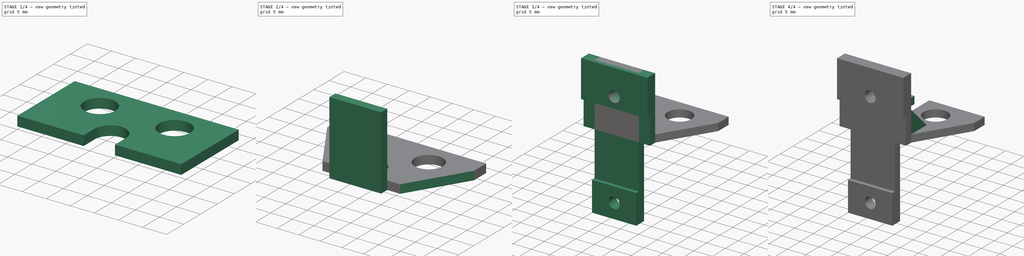
[diagram: build sequence overview — one tinted view per stage of 4, left to right]
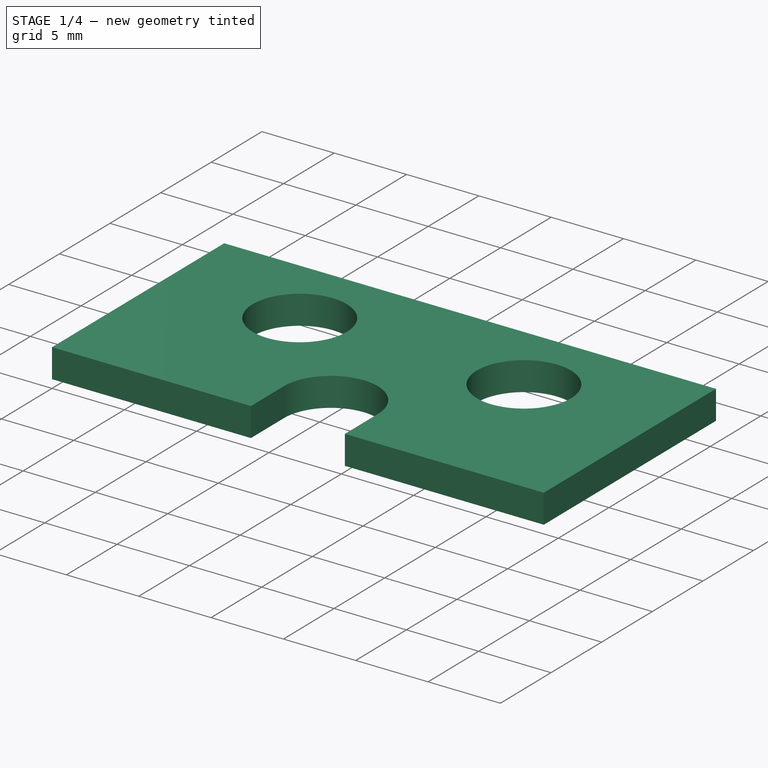
[diagram: stage 1 of 4 — iso view after this stage's code; geometry added in this stage tinted green]
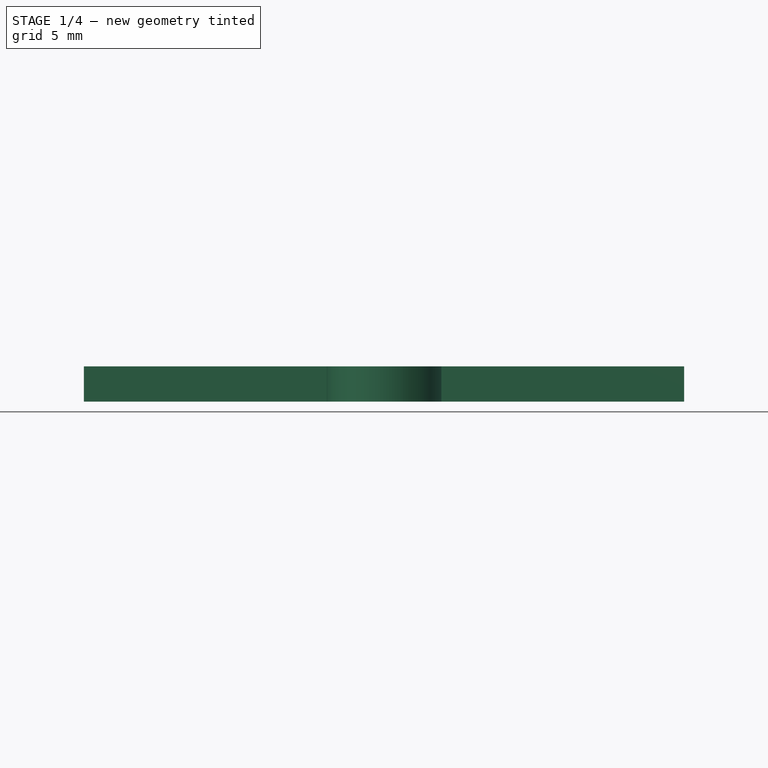
[diagram: stage 1 of 4 — front view after this stage's code; geometry added in this stage tinted green]
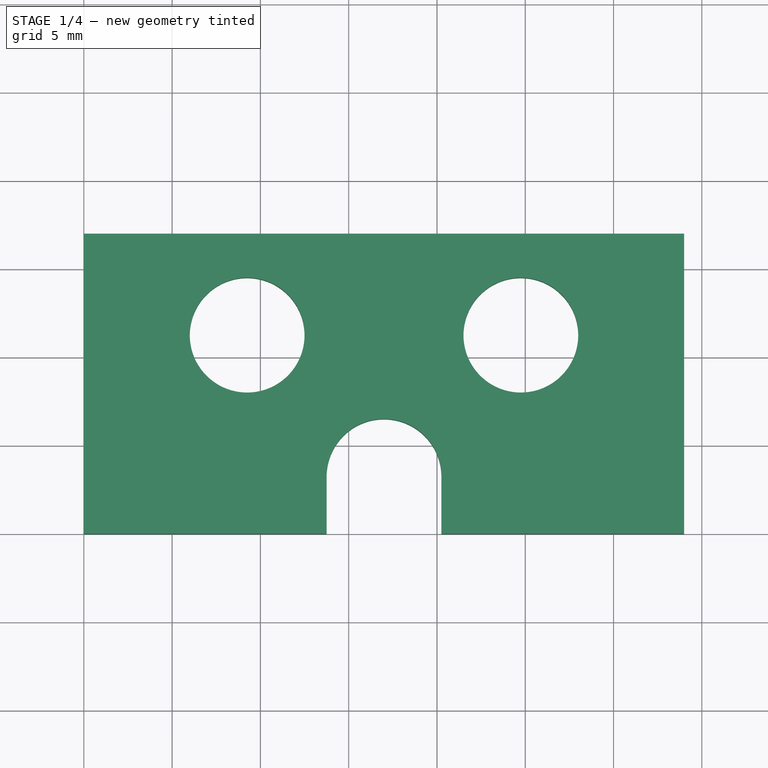
[diagram: stage 1 of 4 — top view after this stage's code; geometry added in this stage tinted green]
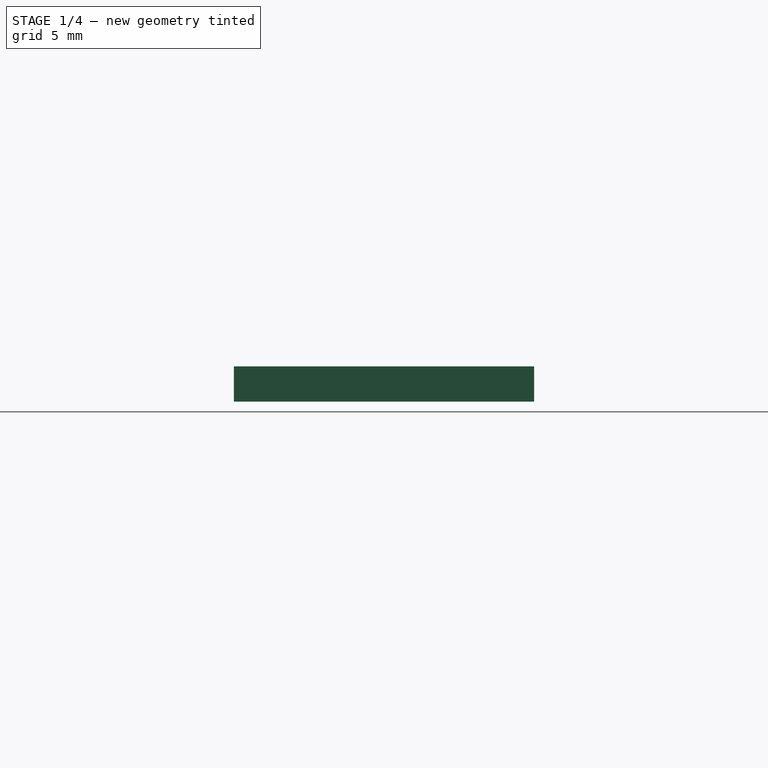
[diagram: stage 1 of 4 — right view after this stage's code; geometry added in this stage tinted green]
FCSTD DOCUMENT  (FreeCAD 0.16R)
Label: support_led_top_vertical_v2
License: All rights reserved
LicenseURL: http://en.wikipedia.org/wiki/All_rights_reserved
objects: Sketcher::SketchObject×12, PartDesign::Pad×7, PartDesign::Pocket×5, Part::Box×1
note: 37 computed .brp shape members not serialized (recipe doc carries the construction recipe); baked Part::Feature solids carry a one-line shape summary decoded from their .brp

FEATURE [Part::Box] Box  label="Cube"
  Height = 2
  Length = 34
  Width = 17
FEATURE [Sketcher::SketchObject] Sketch
  ExternalGeometry = -> [Box]
  Placement = pos=(0,0,2) rot=(0,0,1;0rad)
  Support = -> Box [Face6]
  sketch-geometry (5):
    g0: Circle CenterX=9.25 CenterY=11.25 CenterZ=0 NormalX=0 NormalY=0 NormalZ=1 Radius=3.25
    g1: Circle CenterX=24.75 CenterY=11.25 CenterZ=0 NormalX=0 NormalY=0 NormalZ=1 Radius=3.25
    g2: Circle CenterX=17 CenterY=3.25 CenterZ=0 NormalX=0 NormalY=0 NormalZ=1 Radius=3.25
    g3: LineSegment StartX=13.75 StartY=3.25 StartZ=0 EndX=13.75 EndY=0 EndZ=0
    g4: LineSegment StartX=20.25 StartY=3.24998 StartZ=0 EndX=20.25 EndY=0 EndZ=0
  constraints (17):
    c: Radius(g0) = 3.25
    c: Distance(g0,g-3) = 9.25
    c: Distance(g0,g-5) = 11.25
    c: Radius(g1) = 3.25
    c: Distance(g1,g-6) = 9.25
    c: Distance(g1,g-5) = 11.25
    c: Radius(g2) = 3.25
    c: Distance(g2,g-5) = 3.25
    c: Distance(g2,g-3) = 17
    c: PointOnObject(g3,g2)
    c: PointOnObject(g3,g-5)
    c: Vertical(g3)
    c: Tangent(g3,g2)
    c: PointOnObject(g4,g2)
    c: PointOnObject(g4,g-5)
    c: Vertical(g4)
    c: Tangent(g4,g2)
FEATURE [PartDesign::Pocket] Pocket
  Length = 2
  Sketch = -> Sketch
  Type = 0
FEATURE [Sketcher::SketchObject] Sketch001
  ExternalGeometry = -> [Pocket]
  Placement = pos=(0,0,2) rot=(0,0,1;0rad)
  Support = -> Pocket [Face3]
  sketch-geometry (4):
    g0: LineSegment StartX=13.7506 StartY=3.18723 StartZ=0 EndX=20.2494 EndY=3.18723 EndZ=0
    g1: LineSegment StartX=20.2494 StartY=3.18723 StartZ=0 EndX=20.2494 EndY=0 EndZ=0
    g2: LineSegment StartX=20.2494 StartY=0 StartZ=0 EndX=13.7506 EndY=0 EndZ=0
    g3: LineSegment StartX=13.7506 StartY=0 StartZ=0 EndX=13.7506 EndY=3.18723 EndZ=0
  constraints (11):
    c: Coincident(g0,g1)
    c: Coincident(g1,g2)
    c: Coincident(g2,g3)
    c: Coincident(g3,g0)
    c: Horizontal(g0)
    c: Horizontal(g2)
    c: Vertical(g1)
    c: Vertical(g3)
    c: PointOnObject(g0,g-3)
    c: PointOnObject(g1,g-1)
    c: PointOnObject(g0,g-3)
FEATURE [PartDesign::Pocket] Pocket001
  Length = 2
  Sketch = -> Sketch001
  Type = 0
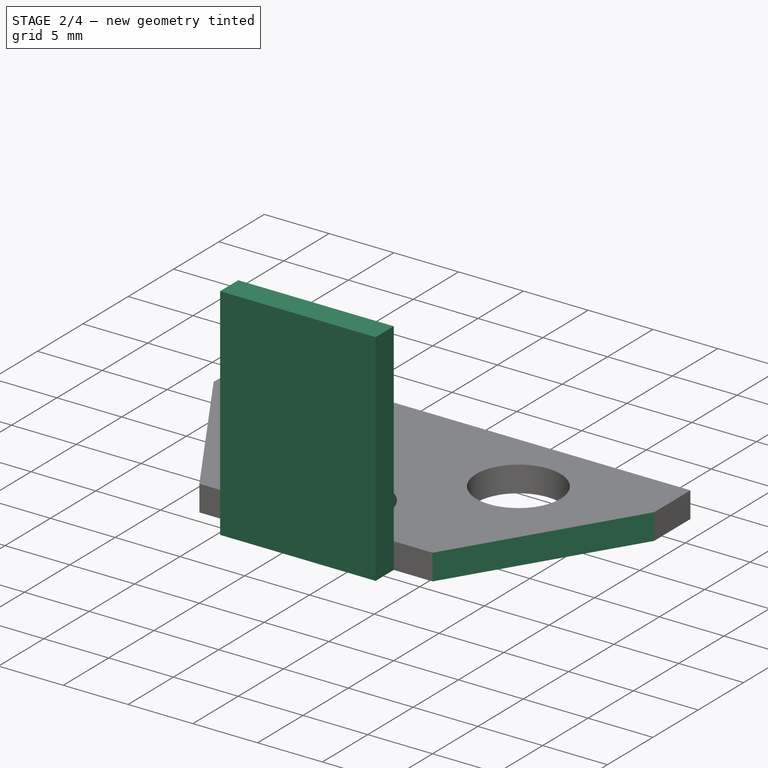
[diagram: stage 2 of 4 — iso view after this stage's code; geometry added in this stage tinted green]
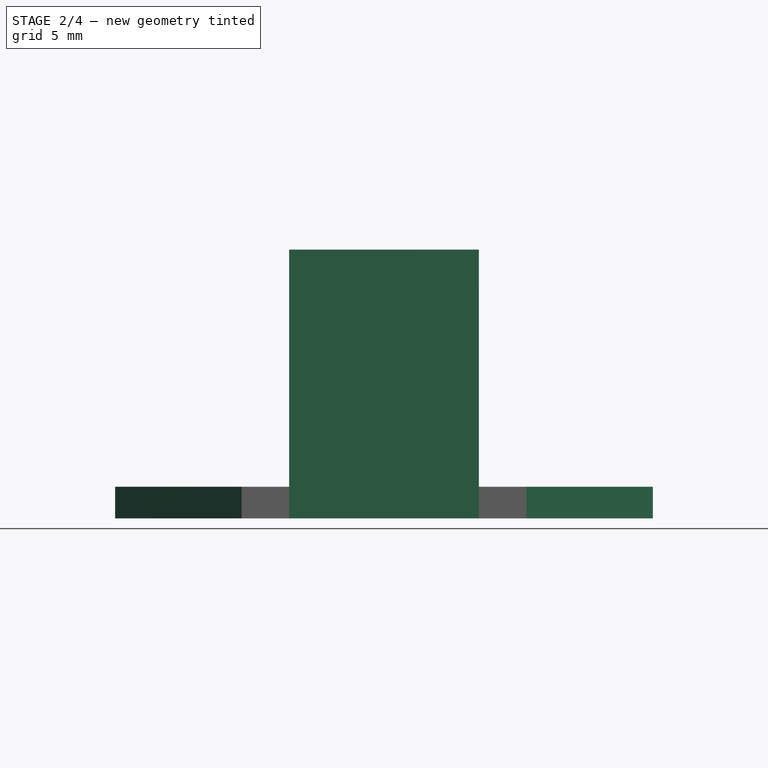
[diagram: stage 2 of 4 — front view after this stage's code; geometry added in this stage tinted green]
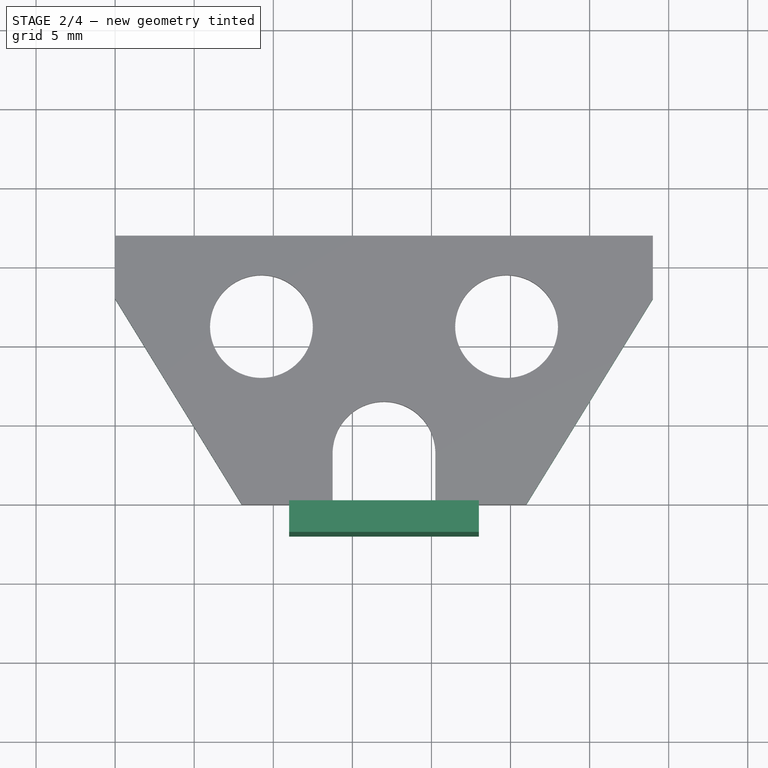
[diagram: stage 2 of 4 — top view after this stage's code; geometry added in this stage tinted green]
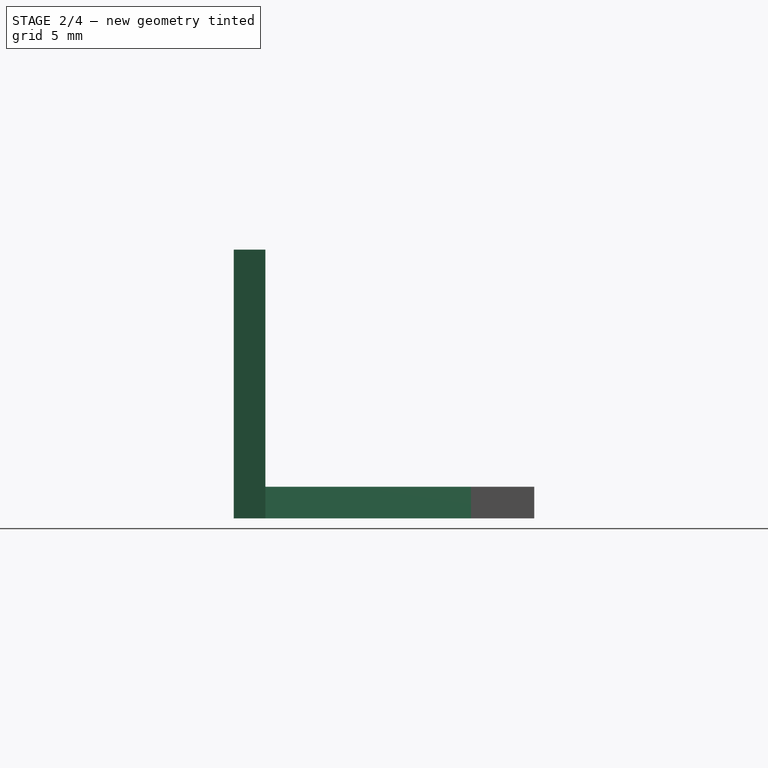
[diagram: stage 2 of 4 — right view after this stage's code; geometry added in this stage tinted green]
FEATURE [Sketcher::SketchObject] Sketch002
  ExternalGeometry = -> [Pocket001]
  Placement = pos=(0,0,2) rot=(0,0,1;0rad)
  Support = -> Pocket001 [Face3]
  sketch-geometry (6):
    g0: LineSegment StartX=0 StartY=0 StartZ=0 EndX=8 EndY=0 EndZ=0
    g1: LineSegment StartX=0 StartY=0 StartZ=0 EndX=0 EndY=13 EndZ=0
    g2: LineSegment StartX=0 StartY=13 StartZ=0 EndX=8 EndY=0 EndZ=0
    g3: LineSegment StartX=34 StartY=0 StartZ=0 EndX=26 EndY=0 EndZ=0
    g4: LineSegment StartX=34 StartY=0 StartZ=0 EndX=34 EndY=13 EndZ=0
    g5: LineSegment StartX=26 StartY=0 StartZ=0 EndX=34 EndY=13 EndZ=0
  constraints (16):
    c: Coincident(g0,g-1)
    c: Horizontal(g0)
    c: Coincident(g1,g-1)
    c: Vertical(g1)
    c: Distance(g0) = 8
    c: Distance(g1) = 13
    c: Coincident(g2,g0)
    c: Coincident(g3,g-3)
    c: Horizontal(g3)
    c: Coincident(g4,g3)
    c: Vertical(g4)
    c: Distance(g4) = 13
    c: Distance(g3) = 8
    c: Coincident(g5,g3)
    c: Coincident(g5,g4)
    c: Coincident(g2,g1)
FEATURE [PartDesign::Pocket] Pocket002
  Length = 2
  Sketch = -> Sketch002
  Type = 0
FEATURE [Sketcher::SketchObject] Sketch003
  ExternalGeometry = -> [Pocket002]
  Placement = pos=(0,0,0) rot=(1,0,0;1.5708rad)
  Support = -> Pocket002 [Face12]
  sketch-geometry (4):
    g0: LineSegment StartX=11 StartY=0 StartZ=0 EndX=23 EndY=0 EndZ=0
    g1: LineSegment StartX=23 StartY=0 StartZ=0 EndX=23 EndY=2 EndZ=0
    g2: LineSegment StartX=23 StartY=2 StartZ=0 EndX=11 EndY=2 EndZ=0
    g3: LineSegment StartX=11 StartY=2 StartZ=0 EndX=11 EndY=0 EndZ=0
  constraints (12):
    c: Coincident(g0,g1)
    c: Coincident(g1,g2)
    c: Coincident(g2,g3)
    c: Coincident(g3,g0)
    c: Horizontal(g0)
    c: Horizontal(g2)
    c: Vertical(g1)
    c: Vertical(g3)
    c: PointOnObject(g0,g-1)
    c: Distance(g-3,g3) = 3
    c: Distance(g3) = 2
    c: Distance(g0) = 12
FEATURE [PartDesign::Pad] Pad
  Length = 2
  Length2 = 100
  Sketch = -> Sketch003
  Type = 0
FEATURE [Sketcher::SketchObject] Sketch004
  ExternalGeometry = -> [Pad]
  Placement = pos=(0,0,2) rot=(0,0,1;0rad)
  Support = -> Pad [Face9]
  sketch-geometry (4):
    g0: LineSegment StartX=11 StartY=0 StartZ=0 EndX=23 EndY=0 EndZ=0
    g1: LineSegment StartX=23 StartY=0 StartZ=0 EndX=23 EndY=-2 EndZ=0
    g2: LineSegment StartX=23 StartY=-2 StartZ=0 EndX=11 EndY=-2 EndZ=0
    g3: LineSegment StartX=11 StartY=-2 StartZ=0 EndX=11 EndY=0 EndZ=0
  constraints (9):
    c: Coincident(g0,g1)
    c: Coincident(g1,g2)
    c: Coincident(g2,g3)
    c: Coincident(g3,g0)
    c: Horizontal(g0)
    c: Horizontal(g2)
    c: Vertical(g1)
    c: Vertical(g3)
    c: Coincident(g0,g-3)
FEATURE [PartDesign::Pad] Pad001
  Length = 15
  Length2 = 100
  Sketch = -> Sketch004
  Type = 0
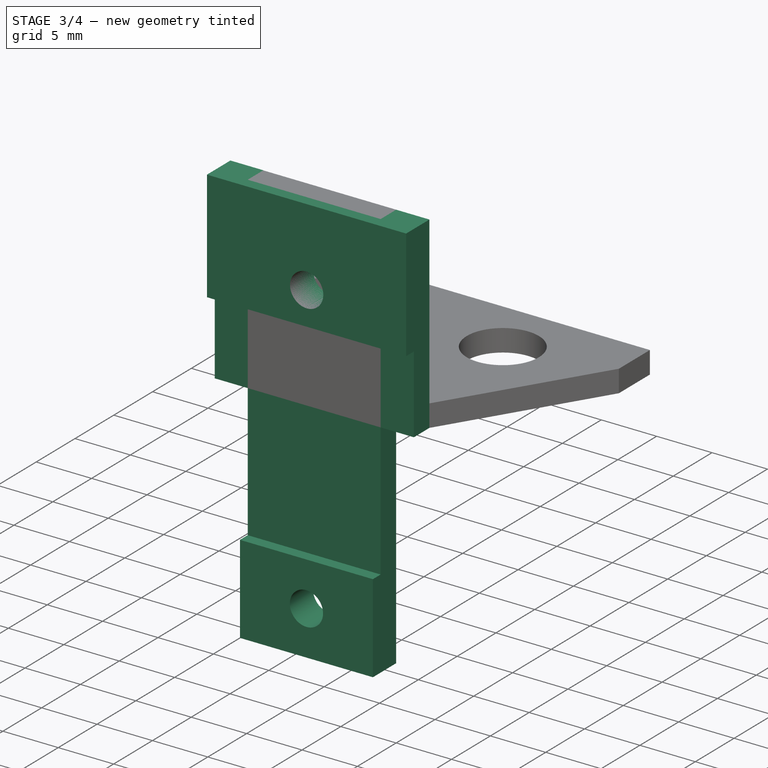
[diagram: stage 3 of 4 — iso view after this stage's code; geometry added in this stage tinted green]
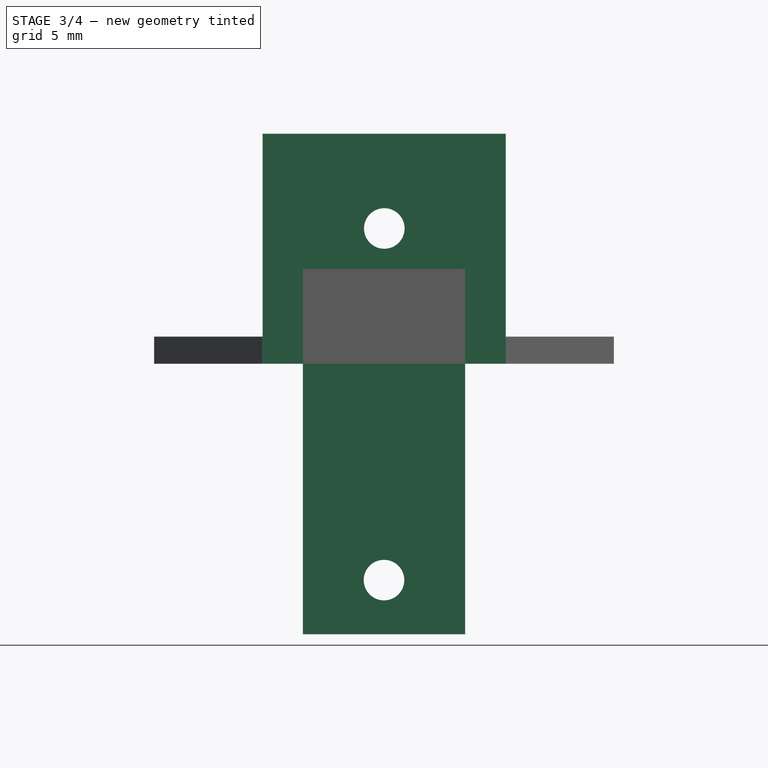
[diagram: stage 3 of 4 — front view after this stage's code; geometry added in this stage tinted green]
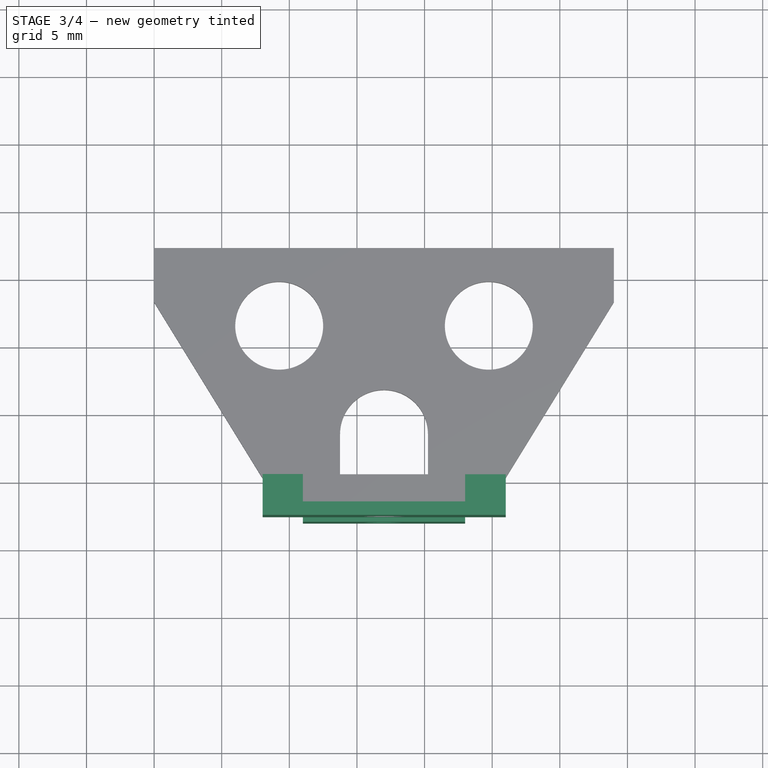
[diagram: stage 3 of 4 — top view after this stage's code; geometry added in this stage tinted green]
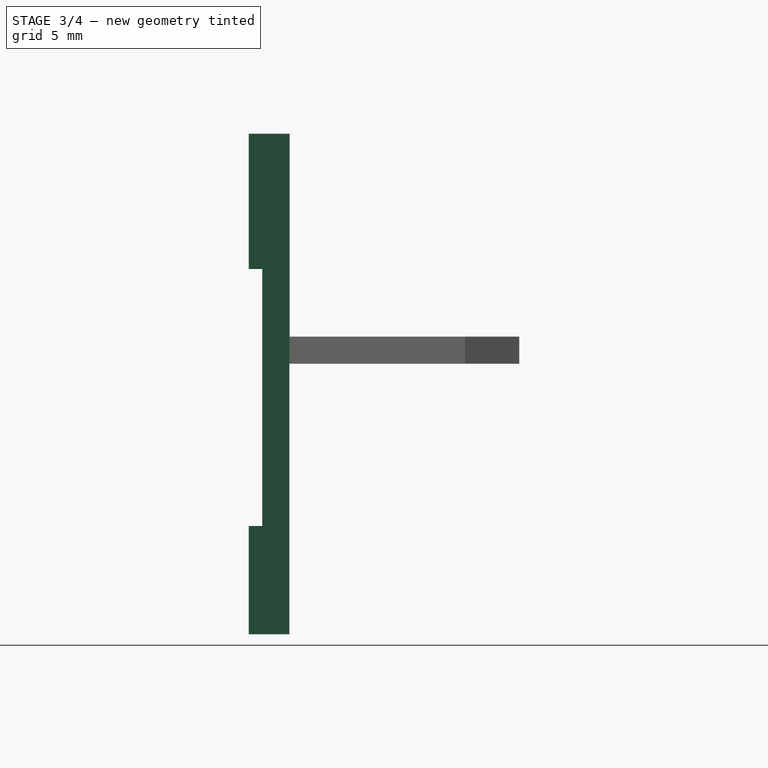
[diagram: stage 3 of 4 — right view after this stage's code; geometry added in this stage tinted green]
FEATURE [Sketcher::SketchObject] Sketch005
  ExternalGeometry = -> [Pad001]
  Placement = pos=(0,0,0) rot=(1,0,0;3.14159rad)
  Support = -> Pad001 [Face17]
  sketch-geometry (4):
    g0: LineSegment StartX=11 StartY=2 StartZ=0 EndX=23 EndY=2 EndZ=0
    g1: LineSegment StartX=23 StartY=2 StartZ=0 EndX=23 EndY=0 EndZ=0
    g2: LineSegment StartX=23 StartY=0 StartZ=0 EndX=11 EndY=0 EndZ=0
    g3: LineSegment StartX=11 StartY=0 StartZ=0 EndX=11 EndY=2 EndZ=0
  constraints (10):
    c: Coincident(g0,g1)
    c: Coincident(g1,g2)
    c: Coincident(g2,g3)
    c: Coincident(g3,g0)
    c: Horizontal(g0)
    c: Horizontal(g2)
    c: Vertical(g1)
    c: Vertical(g3)
    c: Coincident(g0,g-3)
    c: Coincident(g1,g-4)
FEATURE [PartDesign::Pad] Pad002
  Length = 20
  Length2 = 100
  Sketch = -> Sketch005
  Type = 0
FEATURE [Sketcher::SketchObject] Sketch006
  ExternalGeometry = -> [Pad002]
  Placement = pos=(0,0,0) rot=(1,0,0;3.14159rad)
  Support = -> Pad002 [Face4]
  sketch-geometry (8):
    g0: LineSegment StartX=8.02226 StartY=-0.018581 StartZ=0 EndX=11 EndY=-0.018581 EndZ=0
    g1: LineSegment StartX=11 StartY=-0.018581 StartZ=0 EndX=11 EndY=2 EndZ=0
    g2: LineSegment StartX=11 StartY=2 StartZ=0 EndX=8.02226 EndY=2 EndZ=0
    g3: LineSegment StartX=8.02226 StartY=2 StartZ=0 EndX=8.02226 EndY=-0.018581 EndZ=0
    g4: LineSegment StartX=23 StartY=2 StartZ=0 EndX=26 EndY=2 EndZ=0
    g5: LineSegment StartX=26 StartY=2 StartZ=0 EndX=26 EndY=0 EndZ=0
    g6: LineSegment StartX=26 StartY=0 StartZ=0 EndX=23 EndY=0 EndZ=0
    g7: LineSegment StartX=23 StartY=0 StartZ=0 EndX=23 EndY=2 EndZ=0
  constraints (19):
    c: Coincident(g0,g1)
    c: Coincident(g1,g2)
    c: Coincident(g2,g3)
    c: Coincident(g3,g0)
    c: Horizontal(g0)
    c: Horizontal(g2)
    c: Vertical(g1)
    c: Vertical(g3)
    c: Coincident(g1,g-3)
    c: Coincident(g4,g5)
    c: Coincident(g5,g6)
    c: Coincident(g6,g7)
    c: Coincident(g7,g4)
    c: Horizontal(g4)
    c: Horizontal(g6)
    c: Vertical(g5)
    c: Vertical(g7)
    c: Coincident(g4,g-5)
    c: Coincident(g5,g-6)
FEATURE [PartDesign::Pad] Pad003
  Length = 17
  Length2 = 100
  Reversed = true
  Sketch = -> Sketch006
  Type = 0
FEATURE [Sketcher::SketchObject] Sketch007
  ExternalGeometry = -> [Pad003]
  Placement = pos=(0,-2,0) rot=(1,0,0;1.5708rad)
  Support = -> Pad003 [Face34]
  sketch-geometry (8):
    g0: LineSegment StartX=8.02226 StartY=17 StartZ=0 EndX=26 EndY=17 EndZ=0
    g1: LineSegment StartX=26 StartY=17 StartZ=0 EndX=26 EndY=7 EndZ=0
    g2: LineSegment StartX=26 StartY=7 StartZ=0 EndX=8.02226 EndY=7 EndZ=0
    g3: LineSegment StartX=8.02226 StartY=7 StartZ=0 EndX=8.02226 EndY=17 EndZ=0
    g4: LineSegment StartX=11 StartY=-20 StartZ=0 EndX=23 EndY=-20 EndZ=0
    g5: LineSegment StartX=23 StartY=-20 StartZ=0 EndX=23 EndY=-12 EndZ=0
    g6: LineSegment StartX=23 StartY=-12 StartZ=0 EndX=11 EndY=-12 EndZ=0
    g7: LineSegment StartX=11 StartY=-12 StartZ=0 EndX=11 EndY=-20 EndZ=0
  constraints (22):
    c: Coincident(g0,g1)
    c: Coincident(g1,g2)
    c: Coincident(g2,g3)
    c: Coincident(g3,g0)
    c: Horizontal(g0)
    c: Horizontal(g2)
    c: Vertical(g1)
    c: Vertical(g3)
    c: Coincident(g0,g-3)
    c: PointOnObject(g1,g-4)
    c: Distance(g3) = 10
    c: Coincident(g4,g5)
    c: Coincident(g5,g6)
    c: Coincident(g6,g7)
    c: Coincident(g7,g4)
    c: Horizontal(g4)
    c: Horizontal(g6)
    c: Vertical(g5)
    c: Vertical(g7)
    c: Coincident(g4,g-5)
    c: Distance(g7) = 8
    c: PointOnObject(g5,g-6)
FEATURE [PartDesign::Pad] Pad004
  Length = 1
  Length2 = 100
  Sketch = -> Sketch007
  Type = 0
FEATURE [Sketcher::SketchObject] Sketch008
  ExternalGeometry = -> [Pad004]
  Placement = pos=(0,-3,0) rot=(1,0,0;1.5708rad)
  Support = -> Pad004 [Face40]
  sketch-geometry (2):
    g0: Circle CenterX=17.0223 CenterY=10 CenterZ=0 NormalX=0 NormalY=0 NormalZ=1 Radius=1.5
    g1: Circle CenterX=17 CenterY=-16 CenterZ=0 NormalX=0 NormalY=0 NormalZ=1 Radius=1.5
  constraints (6):
    c: Radius(g0) = 1.5
    c: Distance(g0,g-3) = 7
    c: Distance(g0,g-4) = 9
    c: Radius(g1) = 1.5
    c: Distance(g1,g-5) = 4
    c: Distance(g1,g-6) = 6
FEATURE [PartDesign::Pocket] Pocket003
  Length = 3
  Sketch = -> Sketch008
  Type = 0
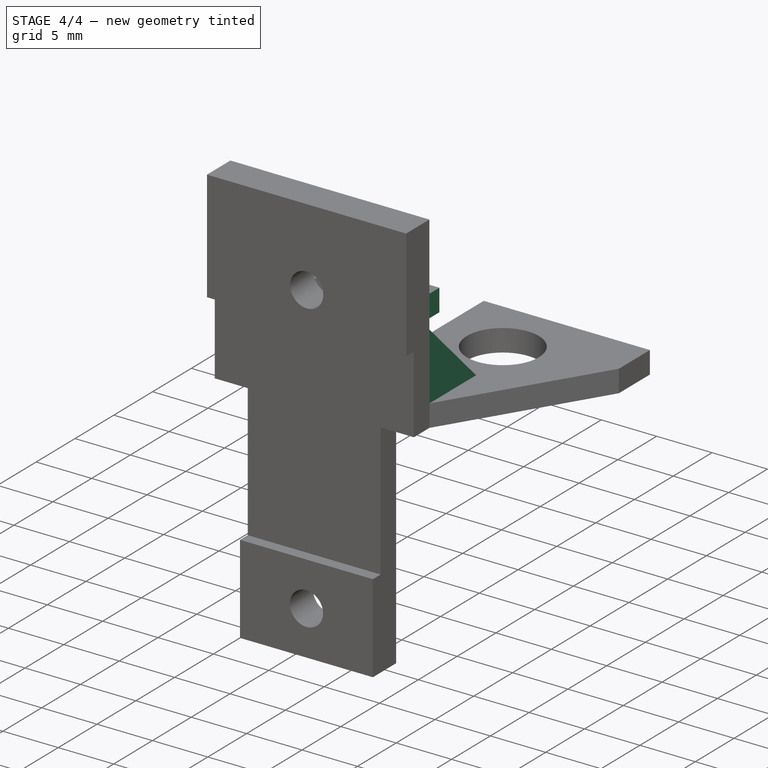
[diagram: stage 4 of 4 — iso view after this stage's code; geometry added in this stage tinted green]
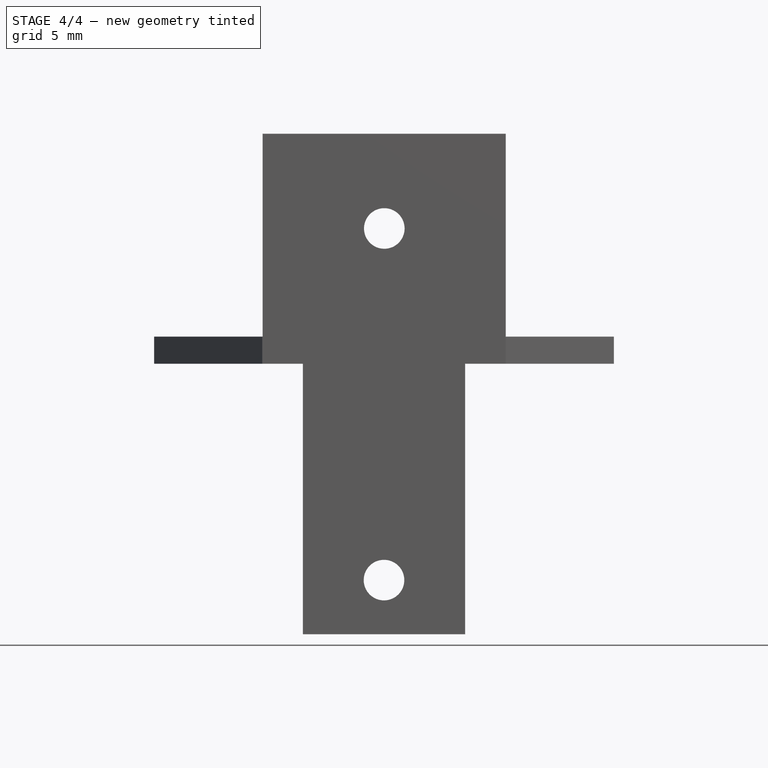
[diagram: stage 4 of 4 — front view after this stage's code; geometry added in this stage tinted green]
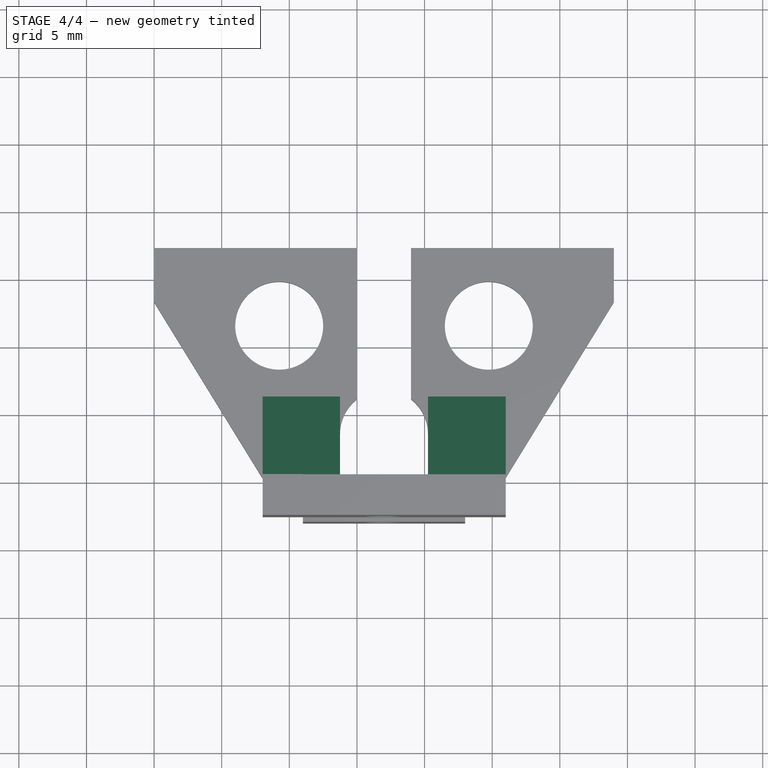
[diagram: stage 4 of 4 — top view after this stage's code; geometry added in this stage tinted green]
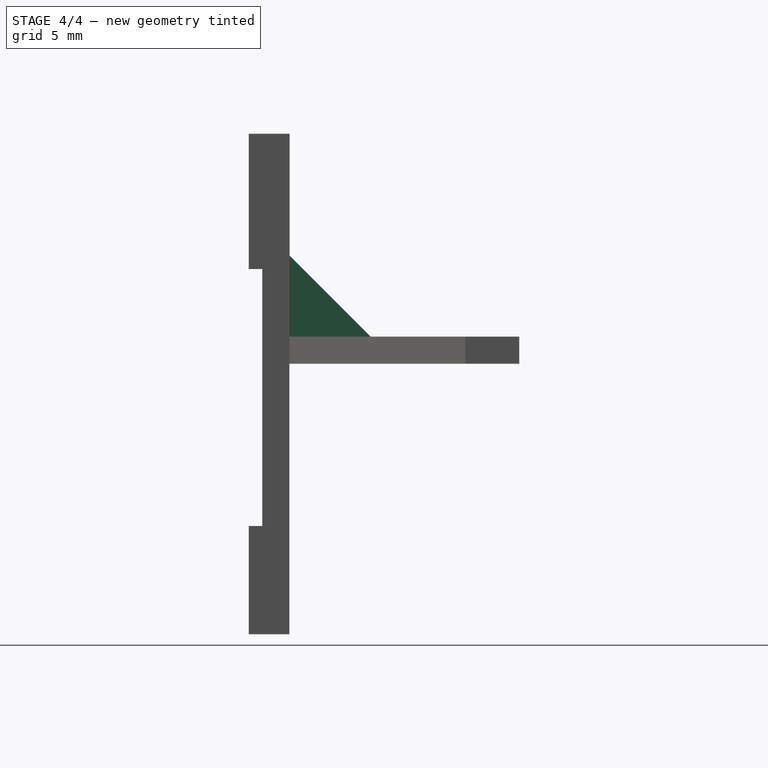
[diagram: stage 4 of 4 — right view after this stage's code; geometry added in this stage tinted green]
FEATURE [Sketcher::SketchObject] Sketch009
  ExternalGeometry = -> [Pocket003]
  Placement = pos=(0,0,2) rot=(0,0,1;0rad)
  Support = -> Pocket003 [Face2]
  sketch-geometry (4):
    g0: LineSegment StartX=15 StartY=17.4473 StartZ=0 EndX=19 EndY=17.4473 EndZ=0
    g1: LineSegment StartX=19 StartY=17.4473 StartZ=0 EndX=19 EndY=3.74058 EndZ=0
    g2: LineSegment StartX=19 StartY=3.74058 StartZ=0 EndX=15 EndY=3.74058 EndZ=0
    g3: LineSegment StartX=15 StartY=3.74058 StartZ=0 EndX=15 EndY=17.4473 EndZ=0
  constraints (10):
    c: Coincident(g0,g1)
    c: Coincident(g1,g2)
    c: Coincident(g2,g3)
    c: Coincident(g3,g0)
    c: Horizontal(g0)
    c: Horizontal(g2)
    c: Vertical(g1)
    c: Vertical(g3)
    c: Distance(g-4,g3) = 15
    c: Distance(g0) = 4
FEATURE [PartDesign::Pocket] Pocket004
  Length = 2
  Sketch = -> Sketch009
  Type = 0
FEATURE [Sketcher::SketchObject] Sketch010
  ExternalGeometry = -> [Pocket004]
  Placement = pos=(8.02226,0,0) rot=(0.57735,-0.57735,-0.57735;2.0944rad)
  Support = -> Pocket004 [Face12]
  sketch-geometry (3):
    g0: LineSegment StartX=-0.018581 StartY=2 StartZ=0 EndX=-6.01858 EndY=2 EndZ=0
    g1: LineSegment StartX=-0.018581 StartY=2 StartZ=0 EndX=-0.018581 EndY=8 EndZ=0
    g2: LineSegment StartX=-0.018581 StartY=8 StartZ=0 EndX=-6.01858 EndY=2 EndZ=0
  constraints (8):
    c: Coincident(g0,g-4)
    c: PointOnObject(g0,g-3)
    c: Coincident(g1,g0)
    c: PointOnObject(g1,g-4)
    c: Coincident(g2,g1)
    c: Coincident(g2,g0)
    c: Distance(g1) = 6
    c: Distance(g0) = 6
FEATURE [PartDesign::Pad] Pad005
  Length = 10
  Length2 = 100
  Reversed = true
  Sketch = -> Sketch010
  Type = 3
  UpToFace = -> Pocket004 [Face8]
FEATURE [Sketcher::SketchObject] Sketch011
  ExternalGeometry = -> [Pad005]
  Placement = pos=(26,0,0) rot=(0.57735,0.57735,0.57735;2.0944rad)
  Support = -> Pad005 [Face60]
  sketch-geometry (3):
    g0: LineSegment StartX=0.018581 StartY=8 StartZ=0 EndX=0.018581 EndY=2 EndZ=0
    g1: LineSegment StartX=0.018581 StartY=2 StartZ=0 EndX=6.01858 EndY=2 EndZ=0
    g2: LineSegment StartX=6.01858 StartY=2 StartZ=0 EndX=0.018581 EndY=8 EndZ=0
  constraints (9):
    c: Vertical(g0)
    c: Coincident(g1,g0)
    c: Horizontal(g1)
    c: Coincident(g2,g0)
    c: DistanceX(g-5,g0) = 0
    c: Coincident(g1,g2)
    c: DistanceY(g-3,g1) = 0
    c: Distance(g0) = 6
    c: Distance(g1) = 6
FEATURE [PartDesign::Pad] Pad006
  Length = 10
  Length2 = 100
  Sketch = -> Sketch011
  Type = 3
  UpToFace = -> Pad005 [Face38]
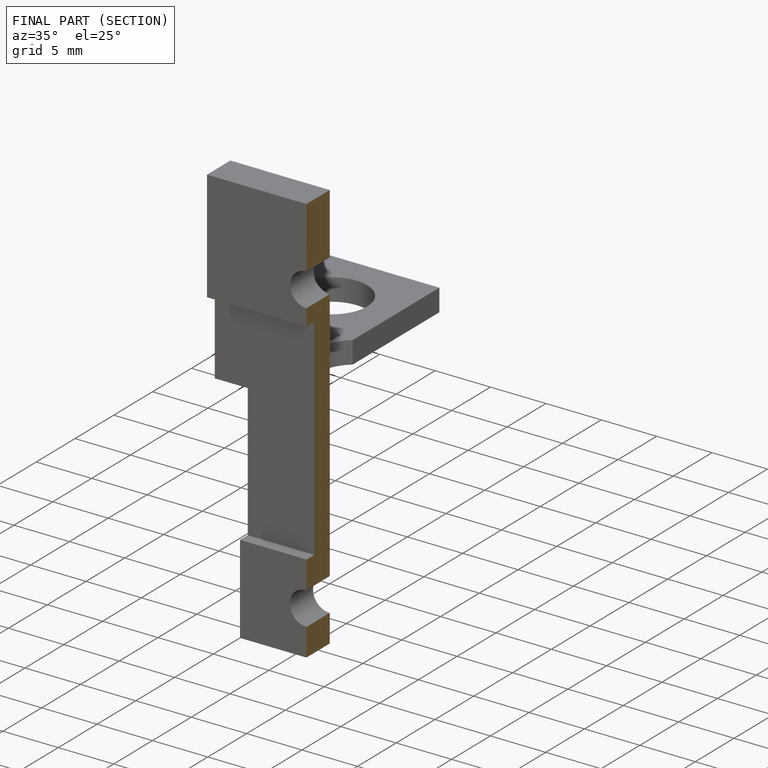
[diagram: finished part — half-section view (interior)]
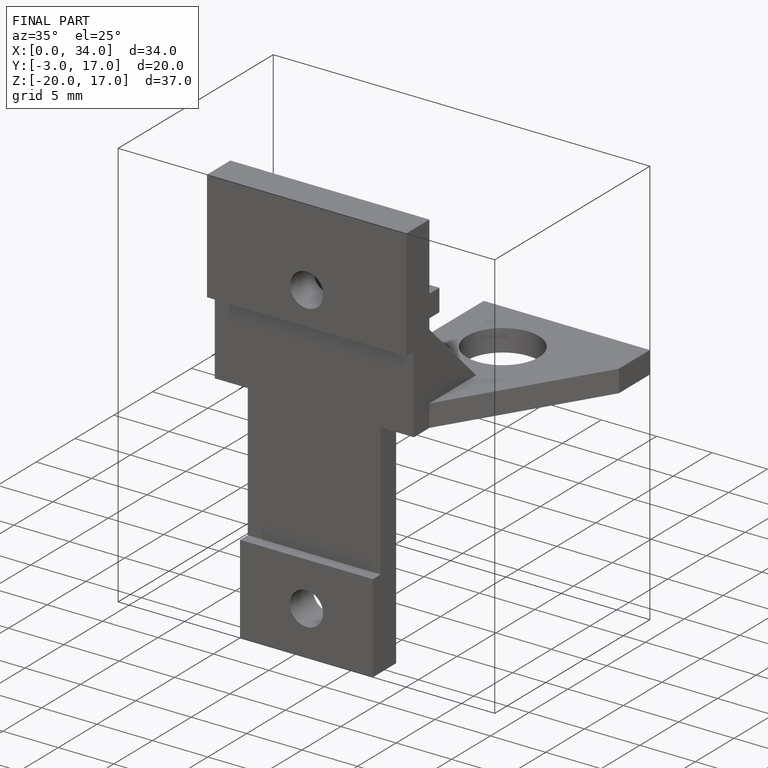
[diagram: finished part — iso view with bounding-box wireframe]
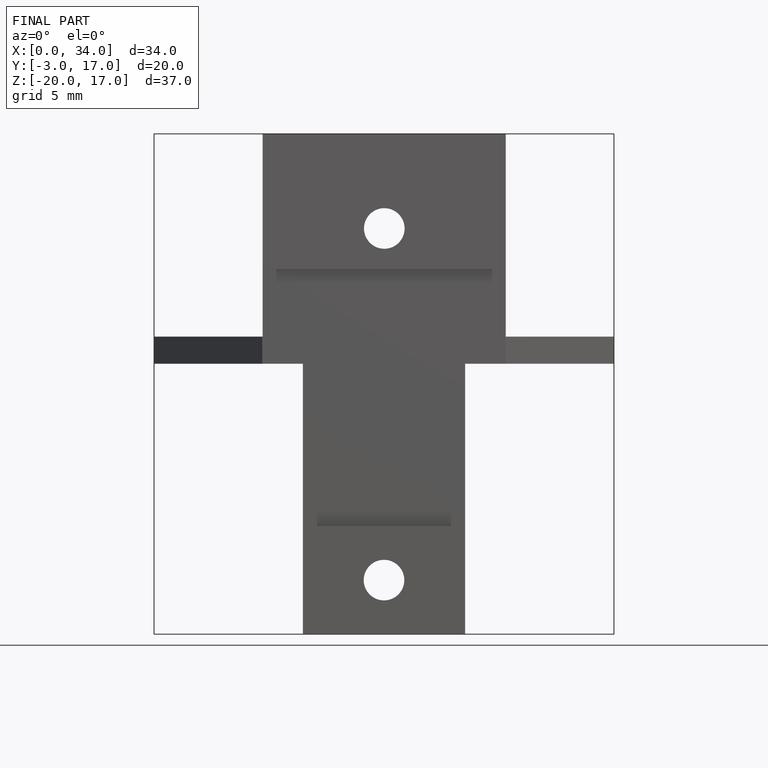
[diagram: finished part — front view with bounding-box wireframe]
